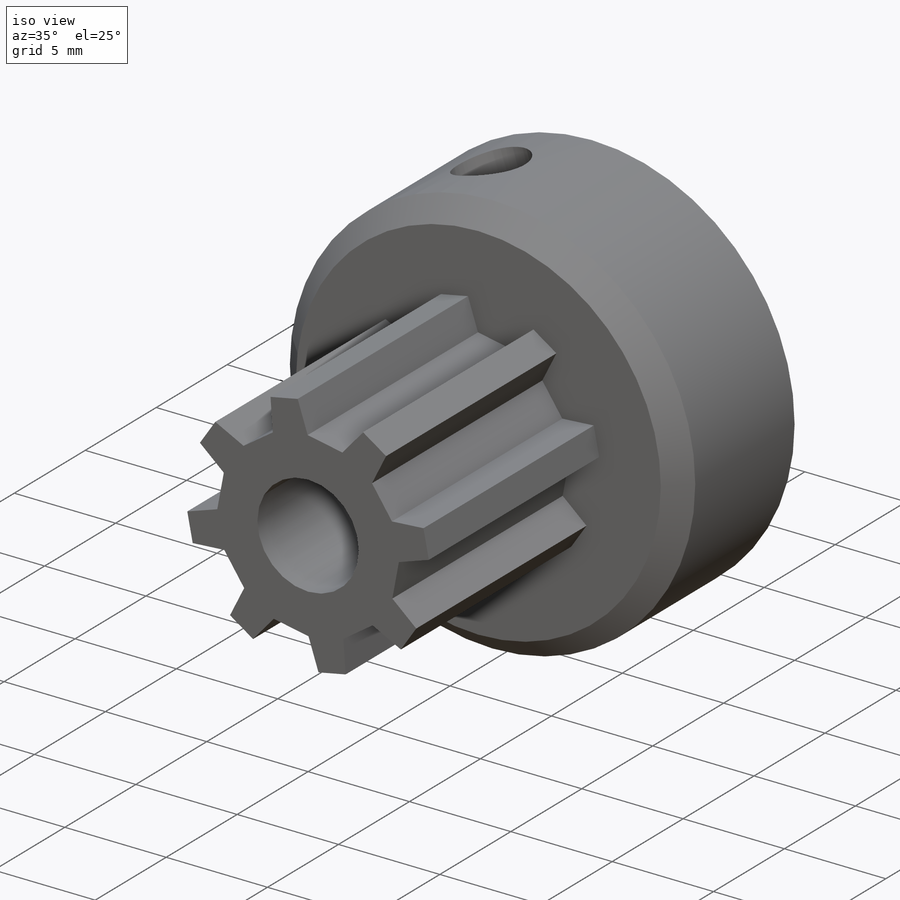
[diagram: iso view]
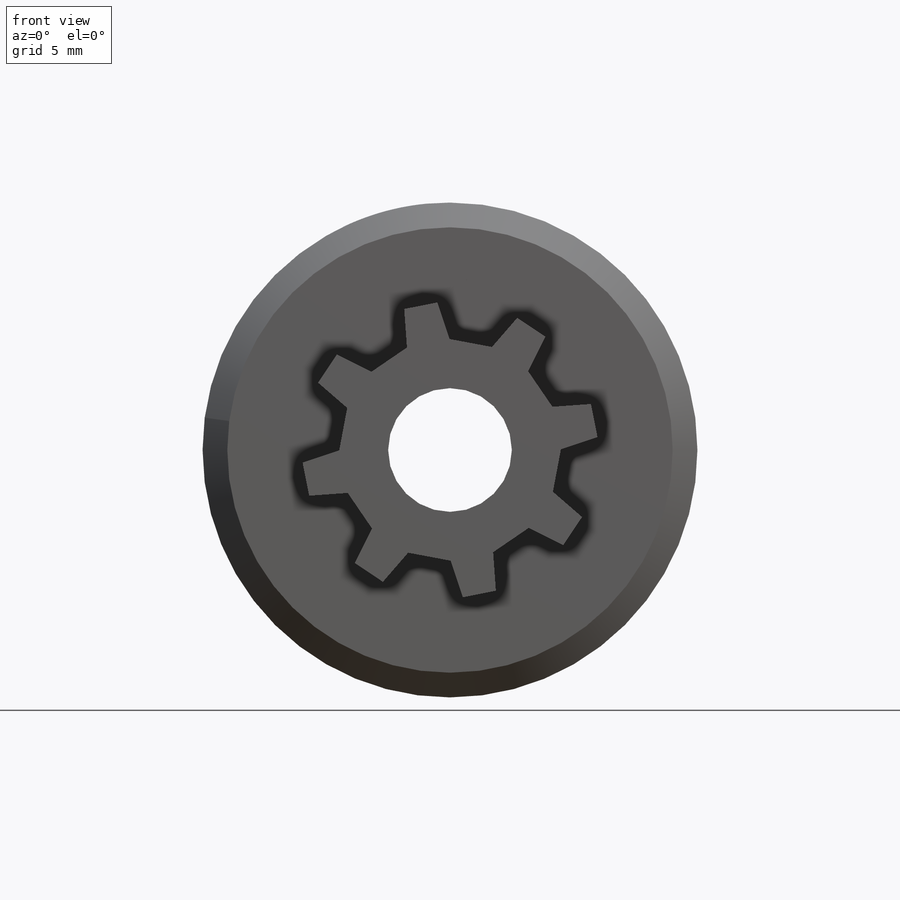
[diagram: front view]
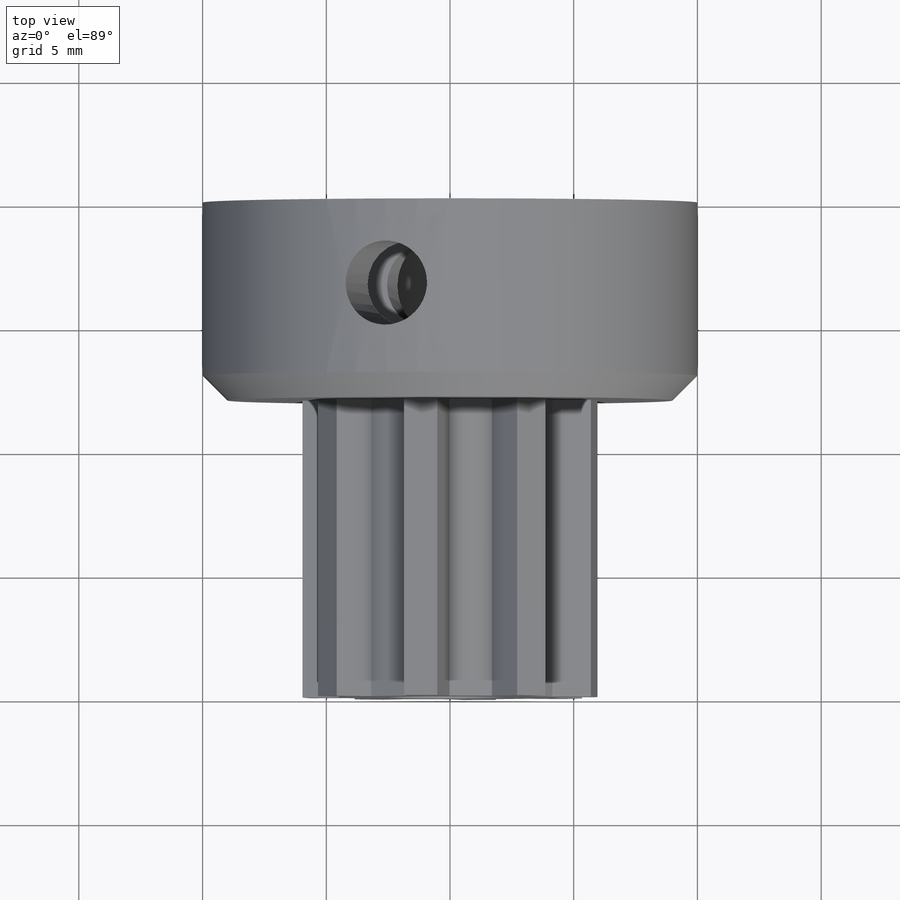
[diagram: top view]
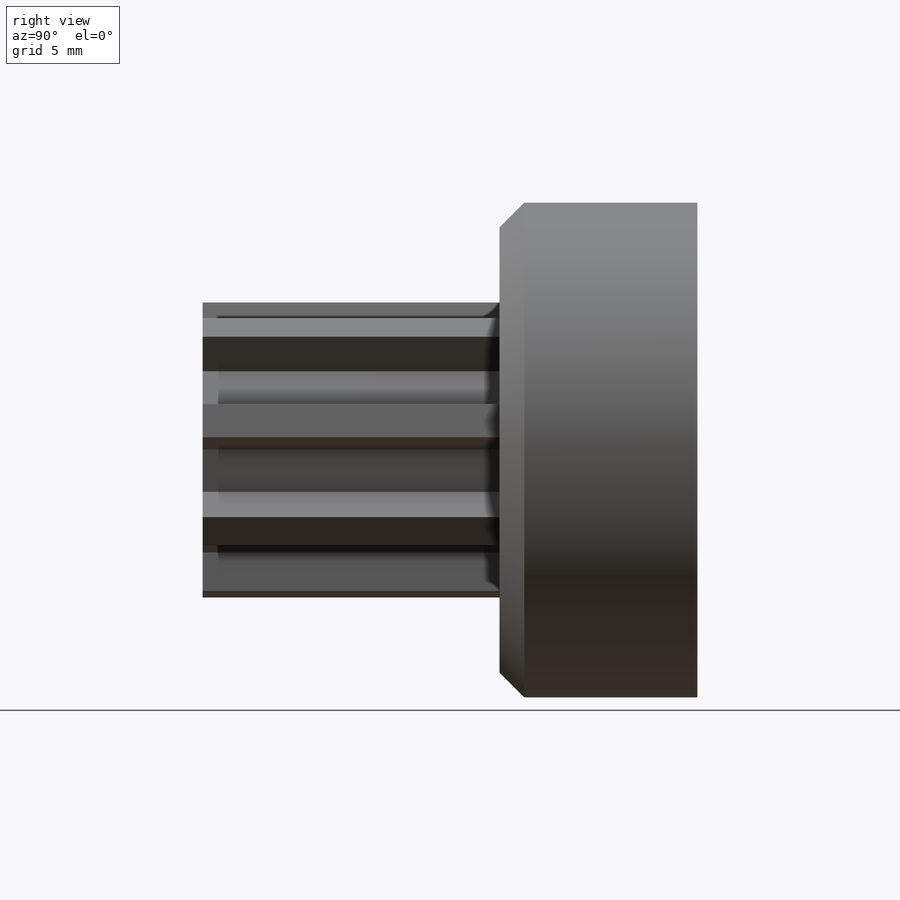
[diagram: right view]
SOLIDWORKS PART (.sldprt)
format: sldprt  version: not decoded by parser v0  size: 335,872 bytes
history: native  units: mm
features: sketch x5, cut_extrude x3, extrude x2, material x1, plane x1, chamfer x1 (+12 scaffold rows collapsed)
feature tree (25):
  scaffold x12  (default folders/planes/origin — collapsed)
  material  "Material <not specified>"
  plane  "Plane1"  Offset=15mm
  sketch  "Sketch1"  dims[c1.D4=~12.973869mm c1.D5=~12.890185mm c1.D1=~1.366265mm c2.D1=~97.174018deg c2.D2=~1.340013mm c3.D2=~97.173918deg c3.D3=~1.559659mm c4.D3=~119.67397deg c4.D4=~1.55966mm c5.D4=~119.673983deg c5.D5=~1.441769mm c6.D5=90.0deg c6.D6=~1.414066mm c7.D6=~150.32603deg c7.D4=~6.486935mm c7.D5=~1.178447mm c8.D5=~14.347936deg c9.D5=~1.479717mm c10.D5=~59.347936deg c11.D5=~1.479717mm c11.D4=~5.097001mm c12.D5=~5.059957mm c12.D3=8.0]
  extrude  "Boss-Extrude1"  Depth=12mm
  sketch  "Sketch2"
  extrude  "Boss-Extrude2"  Depth=8mm
  sketch  "Sketch9"  dims[D1=5.5mm D2=0.25mm]
  cut_extrude  "Cut-Extrude5"  Depth=6.8mm
  sketch  "Sketch10"
  cut_extrude  "Cut-Extrude6"  Depth=10mm
  chamfer  "Chamfer1"  Distance=1mm Angle=45deg
  sketch  "Sketch11"  dims[c1.D1=1.6mm c1.D2=~0.691501mm c2.D1=0.0mm]
  cut_extrude  "Cut-Extrude7"  Depth=2mm
decode coverage: 9 of 11 modeling features carry decoded parameters
note: ~ marks probable driven/reference dimensions
note: suppression state not decoded; provenance and decode notes live in map.json
